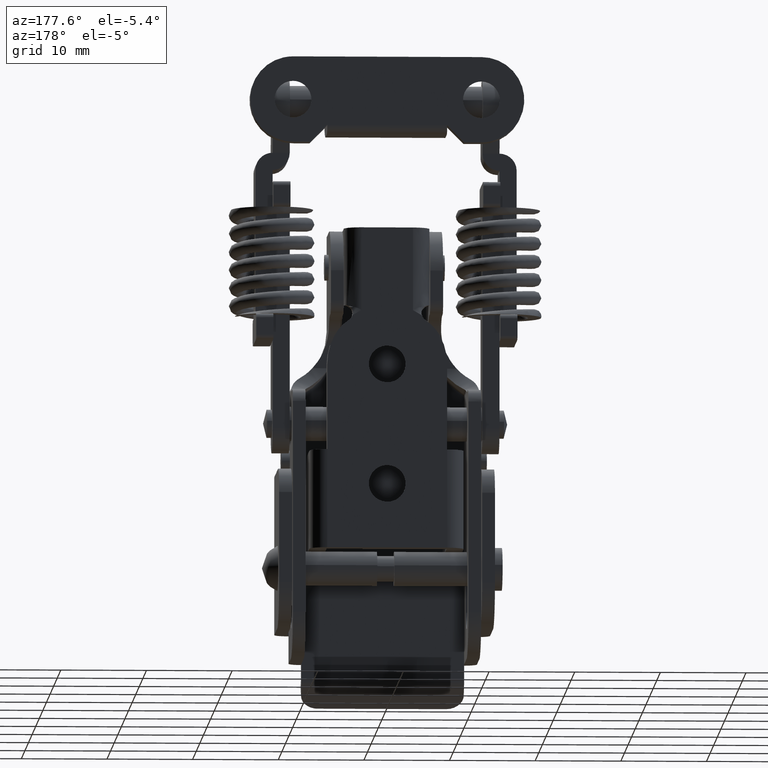
[diagram: clean part render]
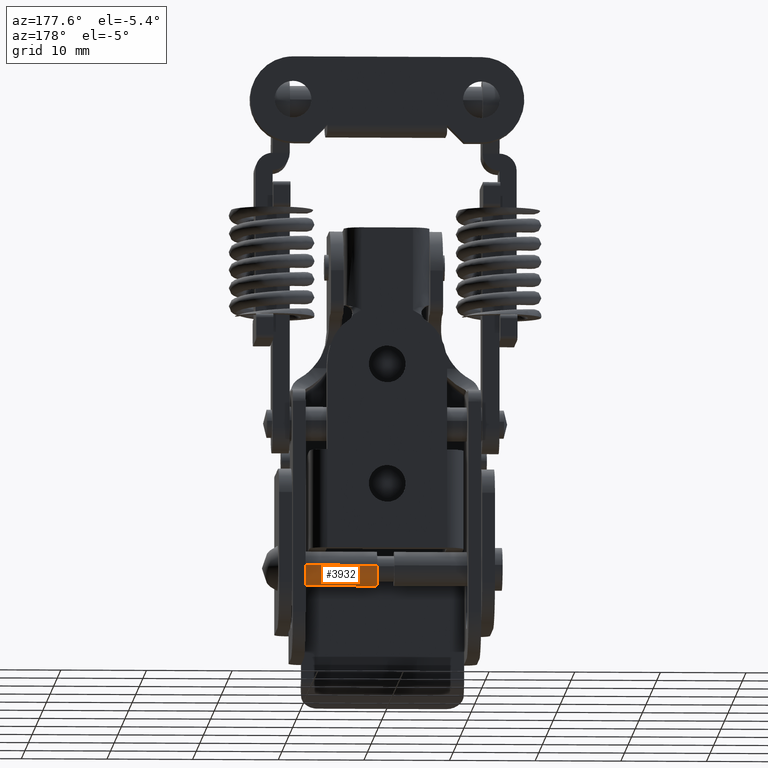
[diagram: same view with one face highlighted and labeled with its STEP entity id]
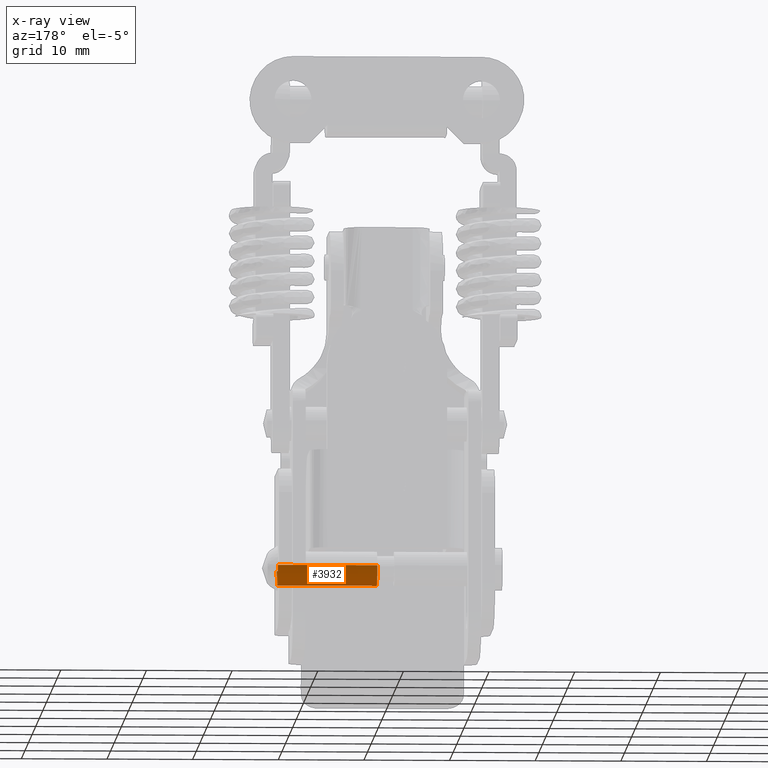
[diagram: x-ray of the same camera — body ghosted, the highlighted face saturated]
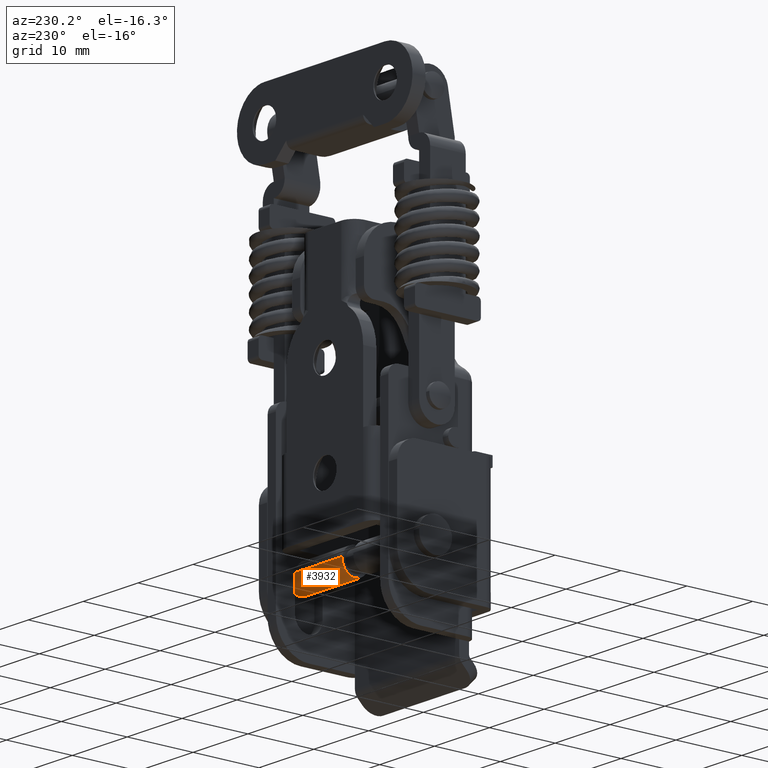
[diagram: same view with one face highlighted and labeled with its STEP entity id]
A machine part, auxiliary view. The second image highlights one B-rep face of the part: STEP entity #3932.
The next image is the same camera in x-ray: the body ghosted, the highlighted face saturated — about 0% of this face is hidden behind the body in this view.
A second angle (auxiliary view) of the same face is appended — the face is thin or edge-on in the first view.
In plain terms, the highlighted face is a freeform B-spline surface patch.
Its self-contained STEP definition (entity closure, byte-faithful):
#3830=CARTESIAN_POINT('',(1.486019052727333,-12.889999999999997,-54.263931530686484));
#3831=CARTESIAN_POINT('',(1.492775230897211,-12.889999999999997,-54.320770542724034));
#3832=CARTESIAN_POINT('',(1.496269596843733,-12.890000000000001,-54.377902920930289));
#3833=CARTESIAN_POINT('',(1.618366675913447,-12.889999999999997,-56.374172517774021));
#3834=CARTESIAN_POINT('',(-0.377902920930286,-12.890000000000001,-56.496269596843732));
#3835=CARTESIAN_POINT('',(-2.374172517774019,-12.889999999999997,-56.618366675913443));
#3836=CARTESIAN_POINT('',(-2.496269596843733,-12.890000000000001,-54.622097079069711));
#3837=CARTESIAN_POINT('',(1.486019052727333,-0.702750000000146,-54.263931530686484));
#3838=CARTESIAN_POINT('',(1.492775230897211,-0.702750000000146,-54.320770542724034));
#3839=CARTESIAN_POINT('',(1.496269596843733,-0.702750000000146,-54.377902920930289));
#3840=CARTESIAN_POINT('',(1.618366675913447,-0.702750000000146,-56.374172517774021));
#3841=CARTESIAN_POINT('',(-0.377902920930286,-0.702750000000146,-56.496269596843732));
#3842=CARTESIAN_POINT('',(-2.374172517774019,-0.702750000000146,-56.618366675913443));
#3843=CARTESIAN_POINT('',(-2.496269596843733,-0.702750000000146,-54.622097079069711));
#3851=(BOUNDED_SURFACE()B_SPLINE_SURFACE(2,1,((#3830,#3837),(#3831,#3838),(#3832,#3839),(#3833,#3840),(#3834,#3841),(#3835,#3842),(#3836,#3843)),.UNSPECIFIED.,.F.,.F.,.U.)B_SPLINE_SURFACE_WITH_KNOTS((3,2,2,3),(2,2),(0.0,0.132548339959391,3.446256838944157,6.759965337928922),(0.0,12.187249999999860),.UNSPECIFIED.)GEOMETRIC_REPRESENTATION_ITEM()RATIONAL_B_SPLINE_SURFACE(((0.977505800795127,0.977505800795127),(0.988284271247462,0.988284271247462),(1.0,1.0),(0.707106781186548,0.707106781186548),(1.0,1.0),(0.707106781186548,0.707106781186548),(1.0,1.0)))REPRESENTATION_ITEM('')SURFACE());
#3852=CARTESIAN_POINT('',(1.486019052703284,-12.600000000000000,-54.263931530484172));
#3853=VERTEX_POINT('',#3852);
#3854=CARTESIAN_POINT('',(-0.500000000000000,-12.600000000000000,-56.500000000000000));
#3855=VERTEX_POINT('',#3854);
#3856=CARTESIAN_POINT('',(1.486019052703285,-12.599999999999996,-54.263931530484165));
#3857=CARTESIAN_POINT('',(1.500000000000000,-12.599999999999998,-54.381551760491732));
#3858=CARTESIAN_POINT('',(1.500000000000000,-12.600000000000000,-54.500000000000000));
#3859=CARTESIAN_POINT('',(1.500000000000000,-12.599999999999996,-56.500000000000000));
#3860=CARTESIAN_POINT('',(-0.500000000000000,-12.600000000000000,-56.500000000000000));
#3868=(BOUNDED_CURVE()B_SPLINE_CURVE(2,(#3856,#3857,#3858,#3859,#3860),.UNSPECIFIED.,.F.,.U.)B_SPLINE_CURVE_WITH_KNOTS((3,2,3),(0.229562473481211,0.250000000000000,0.500000000000000),.UNSPECIFIED.)CURVE()GEOMETRIC_REPRESENTATION_ITEM()RATIONAL_B_SPLINE_CURVE((0.956026754120396,0.976055948293307,1.0,0.707106781186548,1.0))REPRESENTATION_ITEM(''));
#3869=EDGE_CURVE('',#3853,#3855,#3868,.T.);
#3870=ORIENTED_EDGE('',*,*,#3869,.T.);
#3871=CARTESIAN_POINT('',(-2.496269596835037,-12.600000000000000,-54.622097079211898));
#3872=VERTEX_POINT('',#3871);
#3873=CARTESIAN_POINT('',(-0.500000000000000,-12.600000000000000,-56.500000000000000));
#3874=CARTESIAN_POINT('',(-2.381412133542881,-12.599999999999996,-56.499999999999993));
#3875=CARTESIAN_POINT('',(-2.496269596835037,-12.600000000000005,-54.622097079211898));
#3883=(BOUNDED_CURVE()B_SPLINE_CURVE(2,(#3873,#3874,#3875),.UNSPECIFIED.,.F.,.U.)B_SPLINE_CURVE_WITH_KNOTS((3,3),(0.500000000000000,0.739332962217389),.UNSPECIFIED.)CURVE()GEOMETRIC_REPRESENTATION_ITEM()RATIONAL_B_SPLINE_CURVE((1.0,0.719603993311962,0.976072041620524))REPRESENTATION_ITEM(''));
#3884=EDGE_CURVE('',#3855,#3872,#3883,.T.);
#3885=ORIENTED_EDGE('',*,*,#3884,.T.);
#3886=CARTESIAN_POINT('',(-2.496269596835037,-1.000000000000142,-54.622097079211912));
#3887=VERTEX_POINT('',#3886);
#3888=CARTESIAN_POINT('',(-2.496269596835037,-12.600000000000000,-54.622097079211898));
#3889=CARTESIAN_POINT('',(-2.496269596835037,-1.000000000000142,-54.622097079211912));
#3890=QUASI_UNIFORM_CURVE('',1,(#3888,#3889),.UNSPECIFIED.,.F.,.U.);
#3891=EDGE_CURVE('',#3872,#3887,#3890,.T.);
#3892=ORIENTED_EDGE('',*,*,#3891,.T.);
#3893=CARTESIAN_POINT('',(-0.500000000000000,-1.000000000000142,-56.500000000000000));
#3894=VERTEX_POINT('',#3893);
#3895=CARTESIAN_POINT('',(-0.500000000000000,-1.000000000000142,-56.500000000000000));
#3896=CARTESIAN_POINT('',(-2.381412133542857,-1.000000000000142,-56.500000000000000));
#3897=CARTESIAN_POINT('',(-2.496269596835037,-1.000000000000142,-54.622097079211898));
#3905=(BOUNDED_CURVE()B_SPLINE_CURVE(2,(#3895,#3896,#3897),.UNSPECIFIED.,.F.,.U.)B_SPLINE_CURVE_WITH_KNOTS((3,3),(0.500000000000000,0.739332962217387),.UNSPECIFIED.)CURVE()GEOMETRIC_REPRESENTATION_ITEM()RATIONAL_B_SPLINE_CURVE((1.0,0.719603993311965,0.976072041620519))REPRESENTATION_ITEM(''));
#3906=EDGE_CURVE('',#3894,#3887,#3905,.T.);
#3907=ORIENTED_EDGE('',*,*,#3906,.F.);
#3908=CARTESIAN_POINT('',(1.486019052703284,-1.000000000000142,-54.263931530484172));
#3909=VERTEX_POINT('',#3908);
#3910=CARTESIAN_POINT('',(1.486019052703284,-1.000000000000142,-54.263931530484179));
#3911=CARTESIAN_POINT('',(1.500000000000000,-1.000000000000142,-54.381551760491718));
#3912=CARTESIAN_POINT('',(1.500000000000000,-1.000000000000142,-54.500000000000000));
#3913=CARTESIAN_POINT('',(1.500000000000000,-1.000000000000142,-56.500000000000000));
#3914=CARTESIAN_POINT('',(-0.500000000000000,-1.000000000000142,-56.500000000000000));
#3922=(BOUNDED_CURVE()B_SPLINE_CURVE(2,(#3910,#3911,#3912,#3913,#3914),.UNSPECIFIED.,.F.,.U.)B_SPLINE_CURVE_WITH_KNOTS((3,2,3),(0.229562473481211,0.250000000000000,0.500000000000000),.UNSPECIFIED.)CURVE()GEOMETRIC_REPRESENTATION_ITEM()RATIONAL_B_SPLINE_CURVE((0.956026754120394,0.976055948293306,1.0,0.707106781186548,1.0))REPRESENTATION_ITEM(''));
#3923=EDGE_CURVE('',#3909,#3894,#3922,.T.);
#3924=ORIENTED_EDGE('',*,*,#3923,.F.);
#3925=CARTESIAN_POINT('',(1.486019052703284,-12.600000000000000,-54.263931530484172));
#3926=CARTESIAN_POINT('',(1.486019052703284,-1.000000000000142,-54.263931530484172));
#3927=QUASI_UNIFORM_CURVE('',1,(#3925,#3926),.UNSPECIFIED.,.F.,.U.);
#3928=EDGE_CURVE('',#3853,#3909,#3927,.T.);
#3929=ORIENTED_EDGE('',*,*,#3928,.F.);
#3930=EDGE_LOOP('',(#3870,#3885,#3892,#3907,#3924,#3929));
#3931=FACE_OUTER_BOUND('',#3930,.T.);
#3932=ADVANCED_FACE('',(#3931),#3851,.T.);